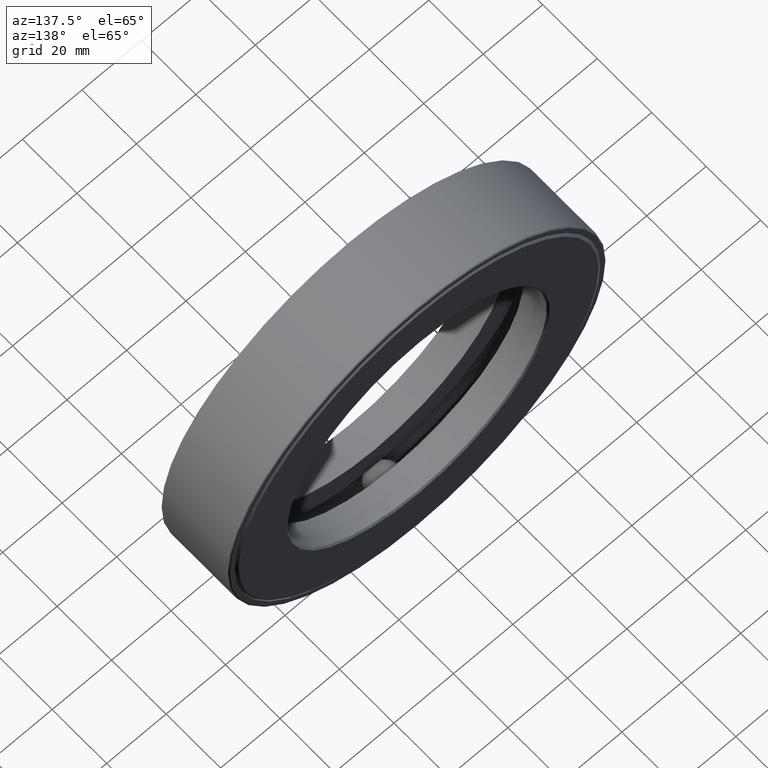
[diagram: clean part render]
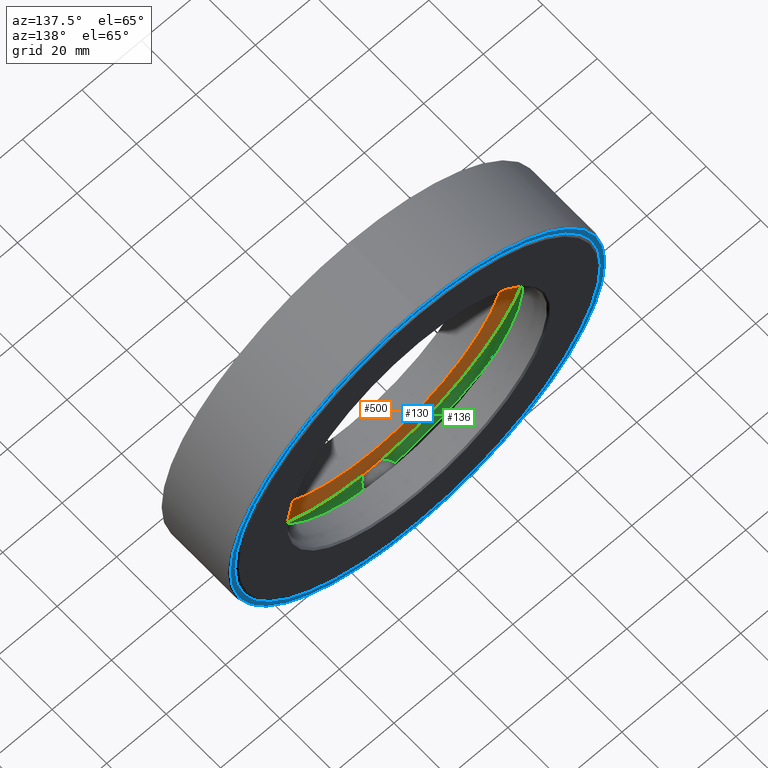
[diagram: same view with three faces highlighted in distinct colors, each labeled with its STEP entity id]
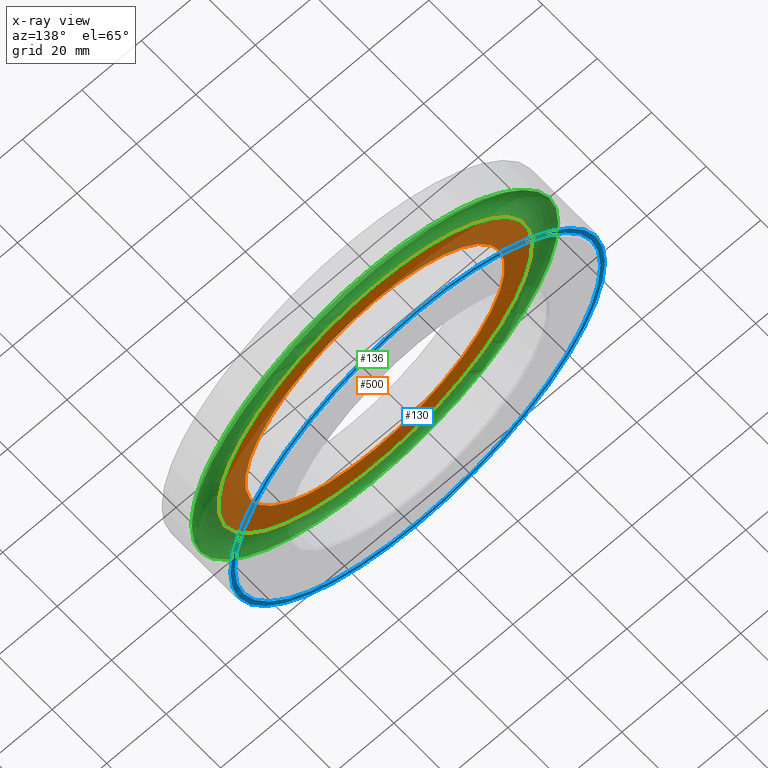
[diagram: x-ray of the same camera — body ghosted, the three highlighted faces saturated]
A machine part, auxiliary view with three faces highlighted in distinct colors.
The next image is the same camera in x-ray (body ghosted, the three faces saturated) — at least one of them is partly hidden behind the body in this view.
Their STEP definitions:

[orange] entity #500 — the highlighted planar face has unit normal (0, -1, 0).
#18 = DIRECTION ( 'NONE',  ( -0.0000000000000000000, 1.000000000000000000, -0.0000000000000000000 ) ) ;
#39 = DIRECTION ( 'NONE',  ( 0.0000000000000000000, -1.000000000000000000, 0.0000000000000000000 ) ) ;
#41 = EDGE_LOOP ( 'NONE', ( #169 ) ) ;
#61 = FACE_OUTER_BOUND ( 'NONE', #41, .T. ) ;
#96 = VERTEX_POINT ( 'NONE', #393 ) ;
#108 = AXIS2_PLACEMENT_3D ( 'NONE', #425, #418, #520 ) ;
#127 = ORIENTED_EDGE ( 'NONE', *, *, #236, .F. ) ;
#138 = AXIS2_PLACEMENT_3D ( 'NONE', #150, #18, #575 ) ;
#150 = CARTESIAN_POINT ( 'NONE',  ( 0.0000000000000000000, 0.3687499999999997400, 0.0000000000000000000 ) ) ;
#164 = CARTESIAN_POINT ( 'NONE',  ( 0.0000000000000000000, 0.3687499999999997400, 0.0000000000000000000 ) ) ;
#169 = ORIENTED_EDGE ( 'NONE', *, *, #227, .T. ) ;
#181 = EDGE_LOOP ( 'NONE', ( #127 ) ) ;
#227 = EDGE_CURVE ( 'NONE', #96, #96, #434, .T. ) ;
#236 = EDGE_CURVE ( 'NONE', #574, #574, #338, .T. ) ;
#338 = CIRCLE ( 'NONE', #138, 1.718750000000000400 ) ;
#343 = FACE_BOUND ( 'NONE', #181, .T. ) ;
#347 = CARTESIAN_POINT ( 'NONE',  ( 0.0000000000000000000, 0.3687499999999997400, 1.718750000000000400 ) ) ;
#393 = CARTESIAN_POINT ( 'NONE',  ( 0.0000000000000000000, 0.3687499999999997400, 2.077250000000000300 ) ) ;
#418 = DIRECTION ( 'NONE',  ( -0.0000000000000000000, 1.000000000000000000, -0.0000000000000000000 ) ) ;
#425 = CARTESIAN_POINT ( 'NONE',  ( 0.0000000000000000000, 0.3687499999999997400, 0.0000000000000000000 ) ) ;
#434 = CIRCLE ( 'NONE', #108, 2.077250000000000300 ) ;
#499 = PLANE ( 'NONE',  #512 ) ;
#500 = ADVANCED_FACE ( 'NONE', ( #343, #61 ), #499, .F. ) ;
#512 = AXIS2_PLACEMENT_3D ( 'NONE', #164, #39, #588 ) ;
#520 = DIRECTION ( 'NONE',  ( 0.0000000000000000000, 0.0000000000000000000, 1.000000000000000000 ) ) ;
#574 = VERTEX_POINT ( 'NONE', #347 ) ;
#575 = DIRECTION ( 'NONE',  ( 0.0000000000000000000, 0.0000000000000000000, 1.000000000000000000 ) ) ;
#588 = DIRECTION ( 'NONE',  ( 0.0000000000000000000, -0.0000000000000000000, -1.000000000000000000 ) ) ;

[blue] entity #130 — the highlighted planar face has unit normal (0, -1, 0).
#5 = EDGE_LOOP ( 'NONE', ( #479 ) ) ;
#11 = FACE_BOUND ( 'NONE', #325, .T. ) ;
#13 = AXIS2_PLACEMENT_3D ( 'NONE', #345, #167, #295 ) ;
#94 = AXIS2_PLACEMENT_3D ( 'NONE', #561, #141, #463 ) ;
#106 = CARTESIAN_POINT ( 'NONE',  ( 0.0000000000000000000, 0.9849999999999997600, 2.480000000000000400 ) ) ;
#117 = EDGE_CURVE ( 'NONE', #199, #199, #168, .T. ) ;
#130 = ADVANCED_FACE ( 'NONE', ( #11, #543 ), #274, .F. ) ;
#141 = DIRECTION ( 'NONE',  ( 0.0000000000000000000, -1.000000000000000000, 0.0000000000000000000 ) ) ;
#167 = DIRECTION ( 'NONE',  ( -0.0000000000000000000, 1.000000000000000000, -0.0000000000000000000 ) ) ;
#168 = CIRCLE ( 'NONE', #231, 2.480000000000000400 ) ;
#199 = VERTEX_POINT ( 'NONE', #106 ) ;
#226 = DIRECTION ( 'NONE',  ( -0.0000000000000000000, 1.000000000000000000, -0.0000000000000000000 ) ) ;
#231 = AXIS2_PLACEMENT_3D ( 'NONE', #317, #226, #370 ) ;
#274 = PLANE ( 'NONE',  #94 ) ;
#295 = DIRECTION ( 'NONE',  ( 0.0000000000000000000, 0.0000000000000000000, 1.000000000000000000 ) ) ;
#317 = CARTESIAN_POINT ( 'NONE',  ( 0.0000000000000000000, 0.9849999999999997600, 0.0000000000000000000 ) ) ;
#325 = EDGE_LOOP ( 'NONE', ( #350 ) ) ;
#345 = CARTESIAN_POINT ( 'NONE',  ( 0.0000000000000000000, 0.9849999999999997600, 0.0000000000000000000 ) ) ;
#350 = ORIENTED_EDGE ( 'NONE', *, *, #537, .F. ) ;
#353 = CARTESIAN_POINT ( 'NONE',  ( 0.0000000000000000000, 0.9849999999999997600, 2.419999999999999900 ) ) ;
#370 = DIRECTION ( 'NONE',  ( 0.0000000000000000000, 0.0000000000000000000, 1.000000000000000000 ) ) ;
#376 = VERTEX_POINT ( 'NONE', #353 ) ;
#463 = DIRECTION ( 'NONE',  ( 0.0000000000000000000, -0.0000000000000000000, -1.000000000000000000 ) ) ;
#479 = ORIENTED_EDGE ( 'NONE', *, *, #117, .T. ) ;
#537 = EDGE_CURVE ( 'NONE', #376, #376, #542, .T. ) ;
#542 = CIRCLE ( 'NONE', #13, 2.419999999999999900 ) ;
#543 = FACE_OUTER_BOUND ( 'NONE', #5, .T. ) ;
#561 = CARTESIAN_POINT ( 'NONE',  ( 0.0000000000000000000, 0.9849999999999997600, 0.0000000000000000000 ) ) ;

[green] entity #136 — the highlighted toroidal blend (fillet) surface has major radius 57.2071 mm and minor (blend) radius 5.5563 mm.
#1 = AXIS2_PLACEMENT_3D ( 'NONE', #158, #383, #157 ) ;
#6 = DIRECTION ( 'NONE',  ( -0.0000000000000000000, 1.000000000000000000, -0.0000000000000000000 ) ) ;
#27 = EDGE_LOOP ( 'NONE', ( #470 ) ) ;
#30 = AXIS2_PLACEMENT_3D ( 'NONE', #326, #6, #360 ) ;
#34 = ORIENTED_EDGE ( 'NONE', *, *, #361, .T. ) ;
#81 = VERTEX_POINT ( 'NONE', #603 ) ;
#88 = CIRCLE ( 'NONE', #1, 2.427249999999999900 ) ;
#96 = VERTEX_POINT ( 'NONE', #393 ) ;
#108 = AXIS2_PLACEMENT_3D ( 'NONE', #425, #418, #520 ) ;
#125 = EDGE_LOOP ( 'NONE', ( #34 ) ) ;
#136 = ADVANCED_FACE ( 'NONE', ( #467, #532 ), #377, .F. ) ;
#157 = DIRECTION ( 'NONE',  ( 0.0000000000000000000, 0.0000000000000000000, 1.000000000000000000 ) ) ;
#158 = CARTESIAN_POINT ( 'NONE',  ( 0.0000000000000000000, 0.3687499999999997400, 0.0000000000000000000 ) ) ;
#227 = EDGE_CURVE ( 'NONE', #96, #96, #434, .T. ) ;
#326 = CARTESIAN_POINT ( 'NONE',  ( 0.0000000000000000000, 0.4999999999999998300, 0.0000000000000000000 ) ) ;
#360 = DIRECTION ( 'NONE',  ( 0.0000000000000000000, 0.0000000000000000000, 1.000000000000000000 ) ) ;
#361 = EDGE_CURVE ( 'NONE', #81, #81, #88, .T. ) ;
#377 = TOROIDAL_SURFACE ( 'NONE', #30, 2.252250000000000100, 0.2187500000000000300 ) ;
#383 = DIRECTION ( 'NONE',  ( -0.0000000000000000000, 1.000000000000000000, -0.0000000000000000000 ) ) ;
#393 = CARTESIAN_POINT ( 'NONE',  ( 0.0000000000000000000, 0.3687499999999997400, 2.077250000000000300 ) ) ;
#418 = DIRECTION ( 'NONE',  ( -0.0000000000000000000, 1.000000000000000000, -0.0000000000000000000 ) ) ;
#425 = CARTESIAN_POINT ( 'NONE',  ( 0.0000000000000000000, 0.3687499999999997400, 0.0000000000000000000 ) ) ;
#434 = CIRCLE ( 'NONE', #108, 2.077250000000000300 ) ;
#467 = FACE_OUTER_BOUND ( 'NONE', #27, .T. ) ;
#470 = ORIENTED_EDGE ( 'NONE', *, *, #227, .F. ) ;
#520 = DIRECTION ( 'NONE',  ( 0.0000000000000000000, 0.0000000000000000000, 1.000000000000000000 ) ) ;
#532 = FACE_OUTER_BOUND ( 'NONE', #125, .T. ) ;
#603 = CARTESIAN_POINT ( 'NONE',  ( 0.0000000000000000000, 0.3687499999999997400, 2.427249999999999900 ) ) ;